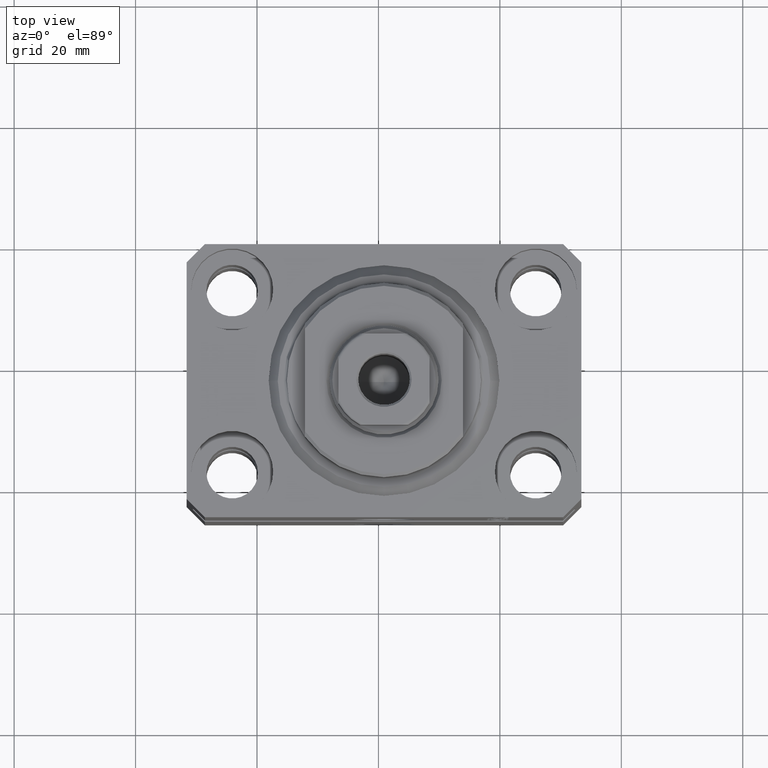
[diagram: clean part render]
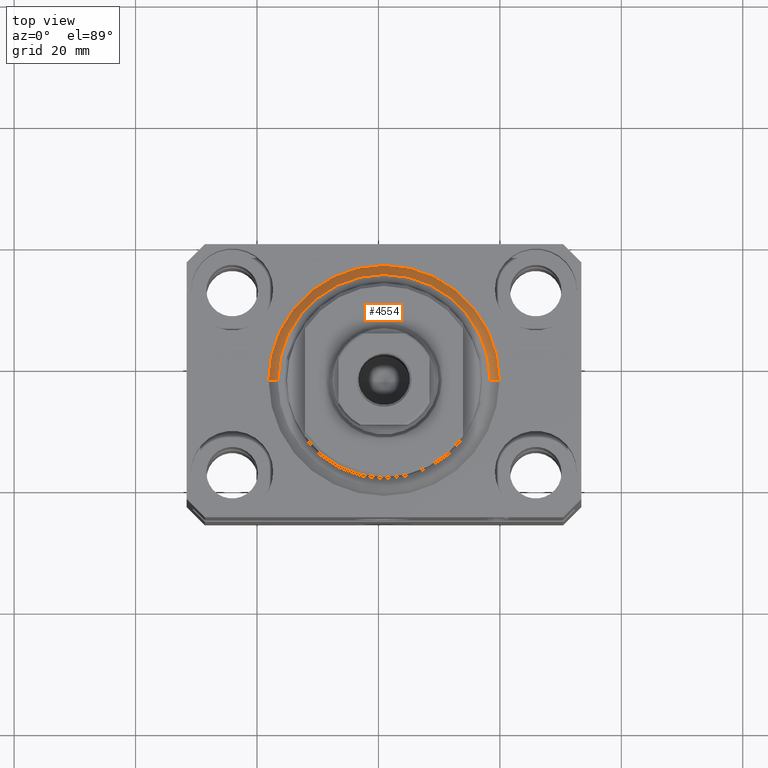
[diagram: same view with one face highlighted and labeled with its STEP entity id]
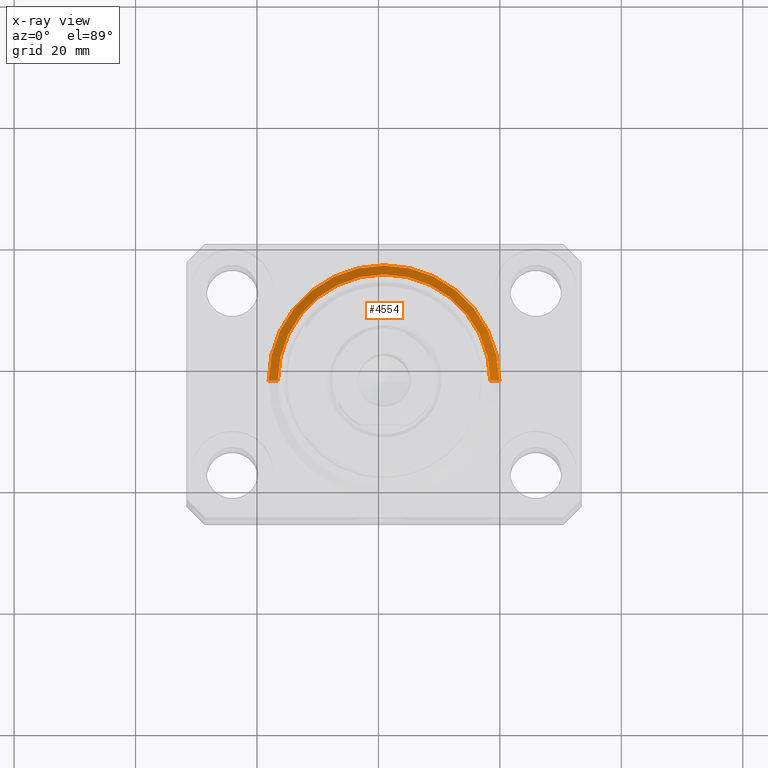
[diagram: x-ray of the same camera — body ghosted, the highlighted face saturated]
A machine part, top view. The second image highlights one B-rep face of the part: STEP entity #4554.
The next image is the same camera in x-ray: the body ghosted, the highlighted face saturated — about 0% of this face is hidden behind the body in this view.
In plain terms, the highlighted conical surface has half-angle 45 deg.
Its self-contained STEP definition (entity closure, byte-faithful):
#1647 = DIRECTION ( 'NONE',  ( -0.000000000000000000, -0.000000000000000000, 1.000000000000000000 ) ) ;
#4182 = VECTOR ( 'NONE', #29062, 1000.000000000000000 ) ;
#4207 = CARTESIAN_POINT ( 'NONE',  ( 19.00000000000000000, 2.326828918379970970E-15, 1.500000000000001332 ) ) ;
#4550 = DIRECTION ( 'NONE',  ( 1.000000000000000000, 0.000000000000000000, 0.000000000000000000 ) ) ;
#4554 = ADVANCED_FACE ( 'NONE', ( #43484 ), #18788, .T. ) ;
#7098 = CARTESIAN_POINT ( 'NONE',  ( 17.49999999999999645, 0.000000000000000000, 0.000000000000000000 ) ) ;
#8601 = VERTEX_POINT ( 'NONE', #7098 ) ;
#9058 = VERTEX_POINT ( 'NONE', #18396 ) ;
#9456 = ORIENTED_EDGE ( 'NONE', *, *, #31886, .F. ) ;
#12325 = DIRECTION ( 'NONE',  ( 1.000000000000000000, 0.000000000000000000, 0.000000000000000000 ) ) ;
#13752 = VERTEX_POINT ( 'NONE', #29797 ) ;
#16318 = EDGE_CURVE ( 'NONE', #8601, #37040, #35658, .T. ) ;
#18396 = CARTESIAN_POINT ( 'NONE',  ( -19.00000000000000000, 0.000000000000000000, 1.500000000000001332 ) ) ;
#18788 = CONICAL_SURFACE ( 'NONE', #20242, 19.00000000000000000, 0.7853981633974492782 ) ;
#19727 = LINE ( 'NONE', #26336, #29663 ) ;
#20242 = AXIS2_PLACEMENT_3D ( 'NONE', #26184, #1647, #12325 ) ;
#22527 = CARTESIAN_POINT ( 'NONE',  ( 0.000000000000000000, 0.000000000000000000, 0.000000000000000000 ) ) ;
#22695 = CARTESIAN_POINT ( 'NONE',  ( 19.00000000000000000, 0.000000000000000000, 1.500000000000001332 ) ) ;
#22875 = EDGE_CURVE ( 'NONE', #13752, #9058, #19727, .T. ) ;
#24379 = EDGE_LOOP ( 'NONE', ( #9456, #43860, #30298, #31814 ) ) ;
#24918 = EDGE_CURVE ( 'NONE', #37040, #9058, #40650, .T. ) ;
#25248 = DIRECTION ( 'NONE',  ( 1.000000000000000000, 0.000000000000000000, 0.000000000000000000 ) ) ;
#26184 = CARTESIAN_POINT ( 'NONE',  ( 0.000000000000000000, 0.000000000000000000, 1.500000000000001332 ) ) ;
#26336 = CARTESIAN_POINT ( 'NONE',  ( -19.00000000000000000, 2.326828918379970970E-15, 1.500000000000001332 ) ) ;
#27715 = AXIS2_PLACEMENT_3D ( 'NONE', #22527, #33217, #25248 ) ;
#29062 = DIRECTION ( 'NONE',  ( 0.7071067811865483499, 0.000000000000000000, 0.7071067811865467956 ) ) ;
#29092 = CARTESIAN_POINT ( 'NONE',  ( 0.000000000000000000, 0.000000000000000000, 1.500000000000001332 ) ) ;
#29663 = VECTOR ( 'NONE', #44068, 1000.000000000000000 ) ;
#29797 = CARTESIAN_POINT ( 'NONE',  ( -17.49999999999999645, 2.234980408443919215E-15, 0.000000000000000000 ) ) ;
#30298 = ORIENTED_EDGE ( 'NONE', *, *, #24918, .F. ) ;
#31814 = ORIENTED_EDGE ( 'NONE', *, *, #16318, .F. ) ;
#31885 = AXIS2_PLACEMENT_3D ( 'NONE', #29092, #42524, #4550 ) ;
#31886 = EDGE_CURVE ( 'NONE', #13752, #8601, #40096, .T. ) ;
#33217 = DIRECTION ( 'NONE',  ( -0.000000000000000000, -0.000000000000000000, -1.000000000000000000 ) ) ;
#35658 = LINE ( 'NONE', #22695, #4182 ) ;
#37040 = VERTEX_POINT ( 'NONE', #4207 ) ;
#40096 = CIRCLE ( 'NONE', #27715, 17.49999999999999645 ) ;
#40650 = CIRCLE ( 'NONE', #31885, 19.00000000000000000 ) ;
#42524 = DIRECTION ( 'NONE',  ( -0.000000000000000000, -0.000000000000000000, 1.000000000000000000 ) ) ;
#43484 = FACE_OUTER_BOUND ( 'NONE', #24379, .T. ) ;
#43860 = ORIENTED_EDGE ( 'NONE', *, *, #22875, .T. ) ;
#44068 = DIRECTION ( 'NONE',  ( -0.7071067811865483499, 8.659560562354942719E-17, 0.7071067811865467956 ) ) ;